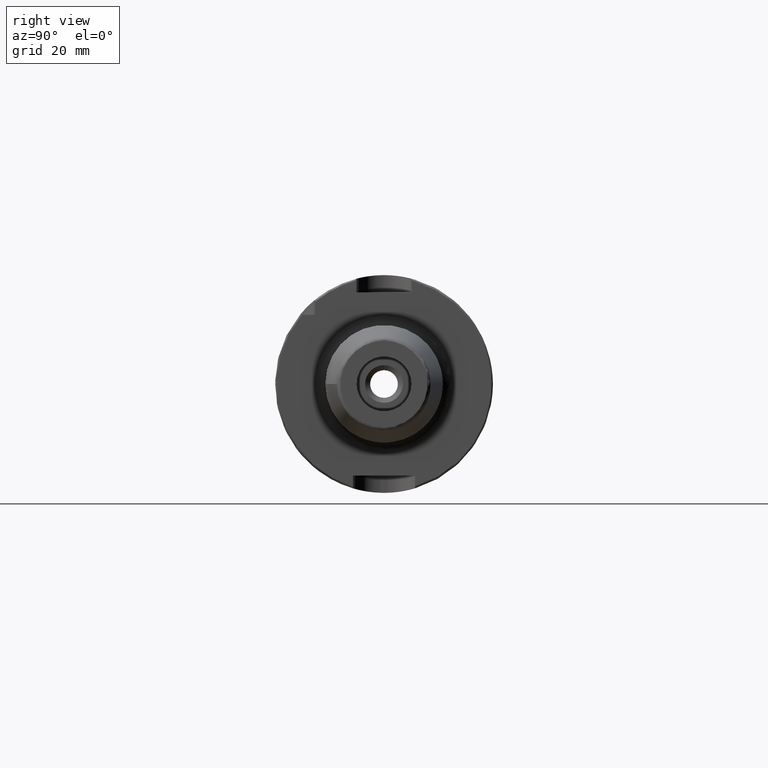
[diagram: clean part render]
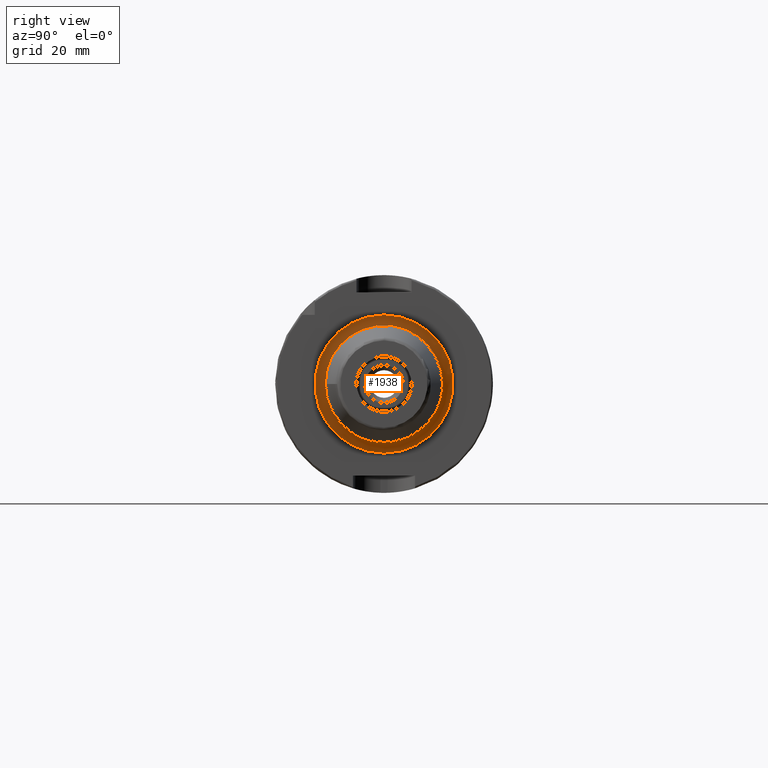
[diagram: same view with one face highlighted and labeled with its STEP entity id]
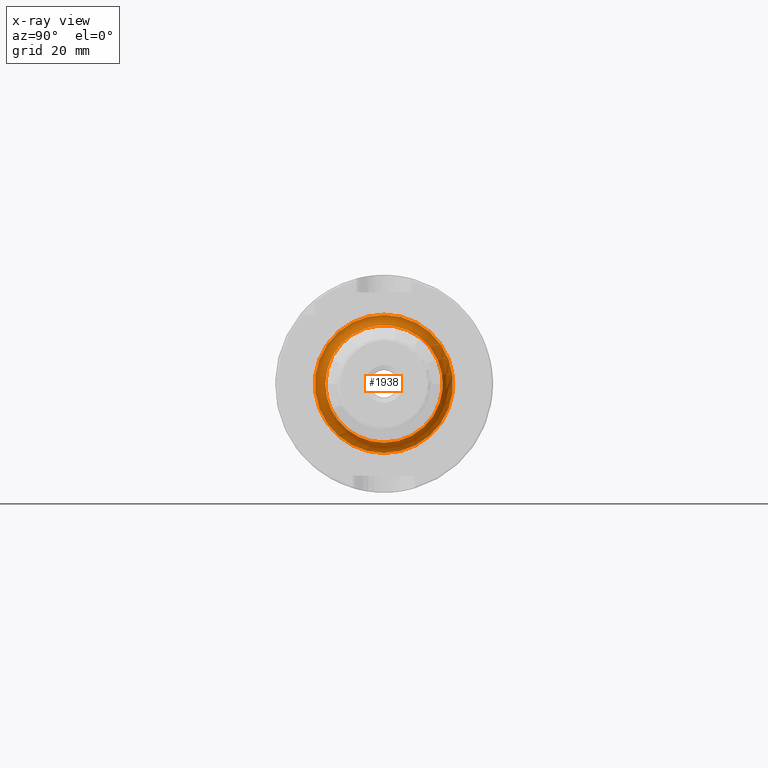
[diagram: x-ray of the same camera — body ghosted, the highlighted face saturated]
A machine part, right view. The second image highlights one B-rep face of the part: STEP entity #1938.
The next image is the same camera in x-ray: the body ghosted, the highlighted face saturated — about 1% of this face is hidden behind the body in this view.
In plain terms, the highlighted toroidal blend (fillet) surface has major radius 20 mm and minor (blend) radius 3 mm.
Its self-contained STEP definition (entity closure, byte-faithful):
#151=TOROIDAL_SURFACE('',#2088,20.,3.);
#213=FACE_OUTER_BOUND('',#330,.T.);
#330=EDGE_LOOP('',(#1323,#1324,#1325,#1326,#1327));
#673=CIRCLE('',#2089,17.);
#674=CIRCLE('',#2090,3.);
#675=CIRCLE('',#2091,20.);
#676=CIRCLE('',#2092,17.);
#796=VERTEX_POINT('',#2950);
#797=VERTEX_POINT('',#2951);
#798=VERTEX_POINT('',#2953);
#1002=EDGE_CURVE('',#796,#797,#673,.T.);
#1003=EDGE_CURVE('',#797,#798,#674,.T.);
#1004=EDGE_CURVE('',#798,#798,#675,.T.);
#1005=EDGE_CURVE('',#797,#796,#676,.T.);
#1323=ORIENTED_EDGE('',*,*,#1002,.T.);
#1324=ORIENTED_EDGE('',*,*,#1003,.T.);
#1325=ORIENTED_EDGE('',*,*,#1004,.T.);
#1326=ORIENTED_EDGE('',*,*,#1003,.F.);
#1327=ORIENTED_EDGE('',*,*,#1005,.T.);
#1938=ADVANCED_FACE('',(#213),#151,.F.);
#2088=AXIS2_PLACEMENT_3D('',#2949,#2357,#2358);
#2089=AXIS2_PLACEMENT_3D('',#2952,#2359,#2360);
#2090=AXIS2_PLACEMENT_3D('',#2954,#2361,#2362);
#2091=AXIS2_PLACEMENT_3D('',#2955,#2363,#2364);
#2092=AXIS2_PLACEMENT_3D('',#2956,#2365,#2366);
#2357=DIRECTION('center_axis',(-1.,0.,0.));
#2358=DIRECTION('ref_axis',(0.,0.,1.));
#2359=DIRECTION('center_axis',(-1.,0.,0.));
#2360=DIRECTION('ref_axis',(0.,-1.,-1.22464679914735E-16));
#2361=DIRECTION('center_axis',(0.,-1.,1.22464679914735E-16));
#2362=DIRECTION('ref_axis',(0.,-1.22464679914735E-16,-1.));
#2363=DIRECTION('center_axis',(1.,0.,0.));
#2364=DIRECTION('ref_axis',(0.,-1.,-1.22464679914735E-16));
#2365=DIRECTION('center_axis',(-1.,0.,0.));
#2366=DIRECTION('ref_axis',(0.,-1.,-1.22464679914735E-16));
#2949=CARTESIAN_POINT('Origin',(29.,0.,0.));
#2950=CARTESIAN_POINT('',(29.,-17.,-2.0818995585505E-15));
#2951=CARTESIAN_POINT('',(29.,-2.0818995585505E-15,-17.));
#2952=CARTESIAN_POINT('Origin',(29.,0.,0.));
#2953=CARTESIAN_POINT('',(26.,-2.44929359829471E-15,-20.));
#2954=CARTESIAN_POINT('Origin',(29.,-2.44929359829471E-15,-20.));
#2955=CARTESIAN_POINT('Origin',(26.,0.,0.));
#2956=CARTESIAN_POINT('Origin',(29.,0.,0.));